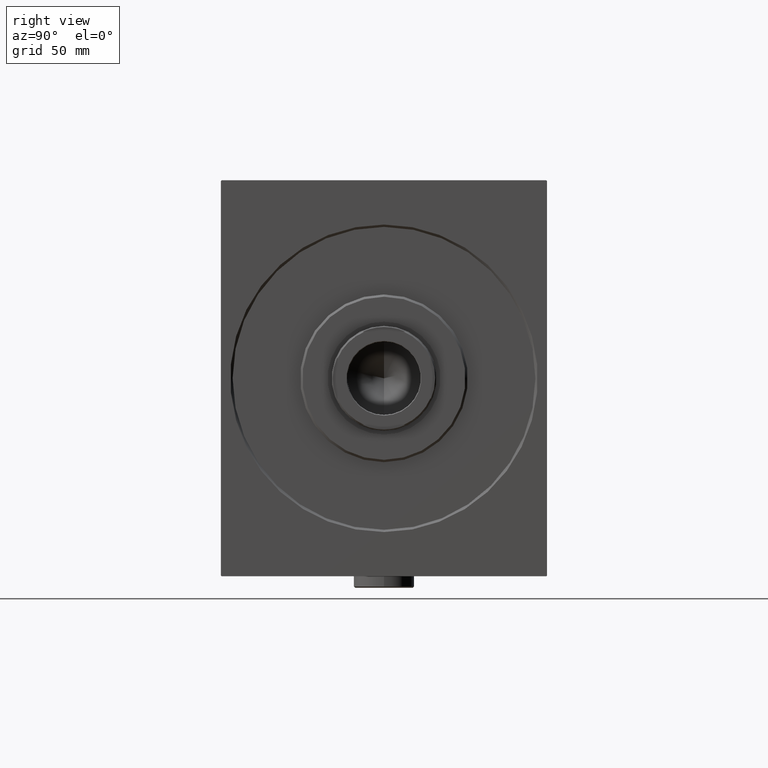
[diagram: clean part render]
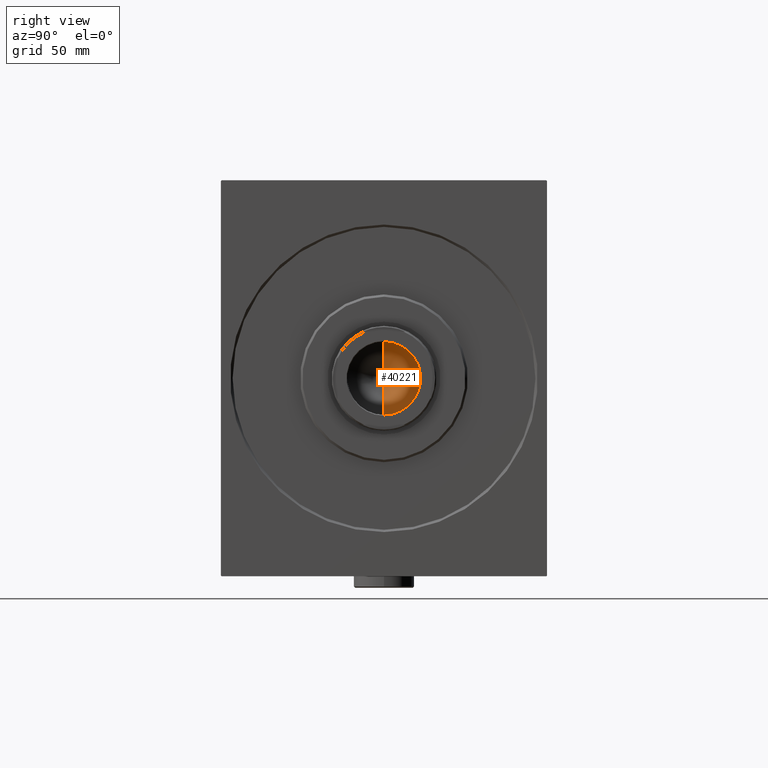
[diagram: same view with one face highlighted and labeled with its STEP entity id]
A machine part, right view. The second image highlights one B-rep face of the part: STEP entity #40221.
In plain terms, the highlighted conical surface has half-angle 59 deg.
Its self-contained STEP definition (entity closure, byte-faithful):
#1858 = CONICAL_SURFACE ( 'NONE', #4003, 15.74999999999999289, 1.029744258676653867 ) ;
#4003 = AXIS2_PLACEMENT_3D ( 'NONE', #20084, #33751, #37971 ) ;
#5927 = ORIENTED_EDGE ( 'NONE', *, *, #27161, .T. ) ;
#6392 = FACE_OUTER_BOUND ( 'NONE', #23857, .T. ) ;
#6403 = DIRECTION ( 'NONE',  ( -0.000000000000000000, -0.000000000000000000, 1.000000000000000000 ) ) ;
#8017 = VECTOR ( 'NONE', #16983, 1000.000000000000000 ) ;
#8332 = CIRCLE ( 'NONE', #36282, 15.74999999999999289 ) ;
#9960 = VERTEX_POINT ( 'NONE', #39038 ) ;
#11064 = DIRECTION ( 'NONE',  ( 0.8571673007021120005, 0.000000000000000000, 0.5150380749100547106 ) ) ;
#12512 = LINE ( 'NONE', #26654, #8017 ) ;
#14617 = EDGE_CURVE ( 'NONE', #9960, #16871, #12512, .T. ) ;
#16871 = VERTEX_POINT ( 'NONE', #38513 ) ;
#16983 = DIRECTION ( 'NONE',  ( -0.8571673007021120005, 1.049727191138618326E-16, 0.5150380749100547106 ) ) ;
#18061 = VECTOR ( 'NONE', #11064, 1000.000000000000000 ) ;
#19275 = CARTESIAN_POINT ( 'NONE',  ( 15.74999999999999289, 0.000000000000000000, 156.0000000000000000 ) ) ;
#20084 = CARTESIAN_POINT ( 'NONE',  ( 0.000000000000000000, 0.000000000000000000, 156.0000000000000000 ) ) ;
#21615 = CARTESIAN_POINT ( 'NONE',  ( 15.74999999999999289, 0.000000000000000000, 156.0000000000000000 ) ) ;
#23857 = EDGE_LOOP ( 'NONE', ( #23915, #5927, #33285 ) ) ;
#23915 = ORIENTED_EDGE ( 'NONE', *, *, #14617, .F. ) ;
#26654 = CARTESIAN_POINT ( 'NONE',  ( -15.74999999999999289, 1.928818708657080556E-15, 156.0000000000000000 ) ) ;
#27161 = EDGE_CURVE ( 'NONE', #9960, #30251, #27908, .T. ) ;
#27908 = LINE ( 'NONE', #21615, #18061 ) ;
#30251 = VERTEX_POINT ( 'NONE', #19275 ) ;
#32665 = DIRECTION ( 'NONE',  ( 1.000000000000000000, 0.000000000000000000, 0.000000000000000000 ) ) ;
#33285 = ORIENTED_EDGE ( 'NONE', *, *, #41167, .T. ) ;
#33751 = DIRECTION ( 'NONE',  ( -0.000000000000000000, -0.000000000000000000, 1.000000000000000000 ) ) ;
#36282 = AXIS2_PLACEMENT_3D ( 'NONE', #36671, #6403, #32665 ) ;
#36671 = CARTESIAN_POINT ( 'NONE',  ( 0.000000000000000000, 0.000000000000000000, 156.0000000000000000 ) ) ;
#37971 = DIRECTION ( 'NONE',  ( 1.000000000000000000, 0.000000000000000000, 0.000000000000000000 ) ) ;
#38513 = CARTESIAN_POINT ( 'NONE',  ( -15.74999999999999289, 1.928818708657080556E-15, 156.0000000000000000 ) ) ;
#39038 = CARTESIAN_POINT ( 'NONE',  ( -1.199718644317817648E-14, 0.000000000000000000, 146.5364452503159214 ) ) ;
#40221 = ADVANCED_FACE ( 'NONE', ( #6392 ), #1858, .F. ) ;
#41167 = EDGE_CURVE ( 'NONE', #30251, #16871, #8332, .T. ) ;